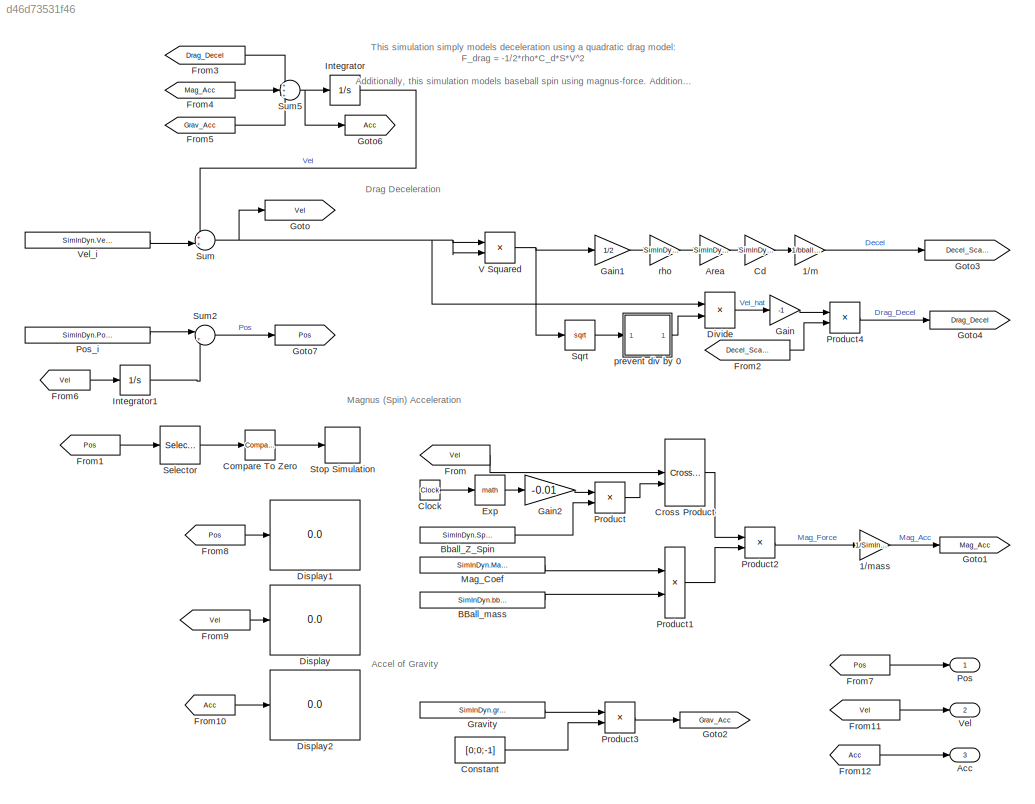
MODEL slx_d46d73531f46
KIND model
CONFIG AbsTol = auto
CONFIG EnableMultiTasking = off
CONFIG FixedStep = auto
CONFIG MaxStep = auto
CONFIG MinStep = auto
CONFIG RelTol = 1e-3
CONFIG SampleTimeConstraint = Unconstrained
CONFIG SolverName = VariableStepAuto
CONFIG StartTime = 0.0
CONFIG StopTime = 30
BLOCK [Gain] 1//m
  Gain = 1/bball_mass
BLOCK [Gain] 1//mass
  Gain = 1/SimInDyn.bball_mass
BLOCK [Outport] Acc
  Port = 3
BLOCK [Gain] Area
  Gain = SimInDyn.bball_area
BLOCK [Constant] BBall_mass
  Value = SimInDyn.bball_mass
BLOCK [Constant] Bball_Z_Spin
  Value = SimInDyn.Spin
BLOCK [Gain] Cd
  Gain = SimInDyn.bball_cd
BLOCK [Clock] Clock
BLOCK [Reference] Compare To Zero  REF=simulink/Logic and Bit
Operations/Compare
To Zero
  SourceBlock = simulink/Logic and Bit\nOperations/Compare\nTo Zero
  SourceType = Compare To Zero
BLOCK [Constant] Constant
  Value = [0;0;-1]
BLOCK [Reference] Cross Product  REF=matrix_library/Cross Product
  LibrarySourceBlock = simulink/Matrix\nOperations/Cross Product
  SourceBlock = matrix_library/Cross Product
  SourceType = CrossProduct
BLOCK [Display] Display
  Decimation = 1
BLOCK [Display] Display1
  Decimation = 1
BLOCK [Display] Display2
  Decimation = 1
BLOCK [Product] Divide
  Inputs = */
BLOCK [Math] Exp
BLOCK [From] From
  GotoTag = Vel
BLOCK [From] From1
  GotoTag = Pos
BLOCK [From] From10
  GotoTag = Acc
BLOCK [From] From11
  GotoTag = Vel
BLOCK [From] From12
  GotoTag = Acc
BLOCK [From] From2
  GotoTag = Decel_Scalar
BLOCK [From] From3
  GotoTag = Drag_Decel
BLOCK [From] From4
  GotoTag = Mag_Acc
BLOCK [From] From5
  GotoTag = Grav_Acc
BLOCK [From] From6
  GotoTag = Vel
BLOCK [From] From7
  GotoTag = Pos
BLOCK [From] From8
  GotoTag = Pos
BLOCK [From] From9
  GotoTag = Vel
BLOCK [Gain] Gain
  Gain = -1
BLOCK [Gain] Gain1
  Gain = 1/2
BLOCK [Gain] Gain2
  Gain = -0.01
BLOCK [Goto] Goto
  GotoTag = Vel
BLOCK [Goto] Goto1
  GotoTag = Mag_Acc
BLOCK [Goto] Goto2
  GotoTag = Grav_Acc
BLOCK [Goto] Goto3
  GotoTag = Decel_Scalar
BLOCK [Goto] Goto4
  GotoTag = Drag_Decel
BLOCK [Goto] Goto6
  GotoTag = Acc
BLOCK [Goto] Goto7
  GotoTag = Pos
BLOCK [Constant] Gravity
  Value = SimInDyn.grav
BLOCK [Integrator] Integrator
BLOCK [Integrator] Integrator1
BLOCK [Constant] Mag_Coef
  Value = SimInDyn.MagFor_Coef
BLOCK [Outport] Pos
BLOCK [Constant] Pos_i
  Value = SimInDyn.Pos_i
BLOCK [Product] Product
BLOCK [Product] Product1
BLOCK [Product] Product2
BLOCK [Product] Product3
BLOCK [Product] Product4
BLOCK [Selector] Selector
  IndexOptions = Index vector (dialog)
  Indices = [3]
  InputPortWidth = 3
  OutputSizes = 1
BLOCK [Sqrt] Sqrt
BLOCK [Stop] Stop Simulation
BLOCK [Sum] Sum
  Inputs = ++|
BLOCK [Sum] Sum2
  Inputs = |++
BLOCK [Sum] Sum5
  Inputs = +++
BLOCK [Product] V Squared
BLOCK [Outport] Vel
  Port = 2
BLOCK [Constant] Vel_i
  Value = SimInDyn.Vel_i
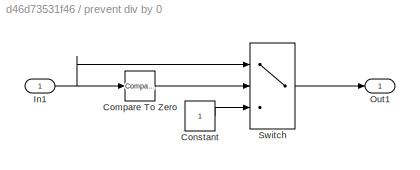
BLOCK [SubSystem] prevent div by 0
BLOCK [Reference] prevent div by 0/Compare To Zero  REF=simulink/Logic and Bit
Operations/Compare
To Zero
  SourceBlock = simulink/Logic and Bit\nOperations/Compare\nTo Zero
  SourceType = Compare To Zero
BLOCK [Constant] prevent div by 0/Constant
BLOCK [Inport] prevent div by 0/In1
BLOCK [Outport] prevent div by 0/Out1
  VectorParamsAs1DForOutWhenUnconnected = off
BLOCK [Switch] prevent div by 0/Switch
  Criteria = u2 > Threshold
  InputSameDT = off
  SaturateOnIntegerOverflow = off
BLOCK [Gain] rho
  Gain = SimInDyn.Atmos_den
ANNOTATION (root): This simulation simply models deceleration using a quadratic drag model: F_drag = -1/2*rho*C_d*S*V^2 Additionally, this simulation models baseball spin using magnus-force. Additionally, gravitational acceleration is modeled
ANNOTATION (root): Accel of Gravity
ANNOTATION (root): Drag Deceleration
ANNOTATION (root): Magnus (Spin) Acceleration
LINE 1//m:1 -> Goto3:1
LINE 1//mass:1 -> Goto1:1
LINE Area:1 -> Cd:1
LINE BBall_mass:1 -> Product1:2
LINE Bball_Z_Spin:1 -> Product:2
LINE Cd:1 -> 1//m:1
LINE Clock:1 -> Exp:1
LINE Compare To Zero:1 -> Stop Simulation:1
LINE Constant:1 -> Product3:2
LINE Cross Product:1 -> Product2:1
LINE Divide:1 -> Gain:1
LINE Exp:1 -> Gain2:1
LINE From10:1 -> Display2:1
LINE From11:1 -> Vel:1
LINE From12:1 -> Acc:1
LINE From1:1 -> Selector:1
LINE From2:1 -> Product4:2
LINE From3:1 -> Sum5:1
LINE From4:1 -> Sum5:2
LINE From5:1 -> Sum5:3
LINE From6:1 -> Integrator1:1
LINE From7:1 -> Pos:1
LINE From8:1 -> Display1:1
LINE From9:1 -> Display:1
LINE From:1 -> Cross Product:1
LINE Gain1:1 -> rho:1
LINE Gain2:1 -> Product:1
LINE Gain:1 -> Product4:1
LINE Gravity:1 -> Product3:1
LINE Integrator1:1 -> Sum2:2
LINE Integrator:1 -> Sum:1
LINE Mag_Coef:1 -> Product1:1
LINE Pos_i:1 -> Sum2:1
LINE Product1:1 -> Product2:2
LINE Product2:1 -> 1//mass:1
LINE Product3:1 -> Goto2:1
LINE Product4:1 -> Goto4:1
LINE Product:1 -> Cross Product:2
LINE Selector:1 -> Compare To Zero:1
LINE Sqrt:1 -> prevent div by 0:1
LINE Sum2:1 -> Goto7:1
NET Sum5:1 -> Goto6:1, Integrator:1
NET Sum:1 -> Divide:1, Goto:1, V Squared:1, V Squared:2
NET V Squared:1 -> Gain1:1, Sqrt:1
LINE Vel_i:1 -> Sum:2
LINE prevent div by 0/Compare To Zero:1 -> prevent div by 0/Switch:2
LINE prevent div by 0/Constant:1 -> prevent div by 0/Switch:3
NET prevent div by 0/In1:1 -> prevent div by 0/Compare To Zero:1, prevent div by 0/Switch:1
LINE prevent div by 0/Switch:1 -> prevent div by 0/Out1:1
LINE prevent div by 0:1 -> Divide:2
LINE rho:1 -> Area:1
note: NET lines group one-source signal fan-out (src -> all destinations, sorted); 1:1 wires keep LINE
